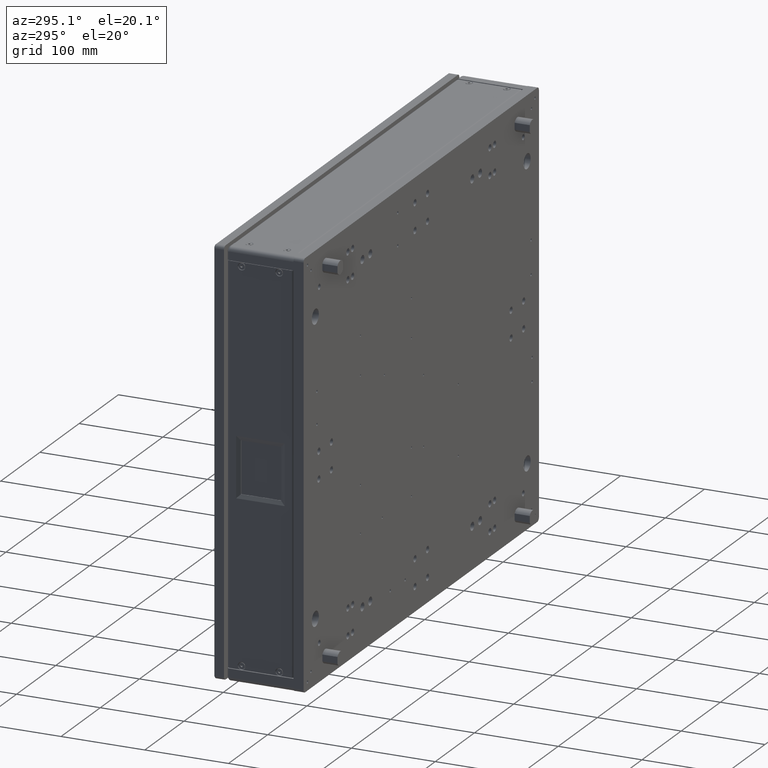
[diagram: clean part render]
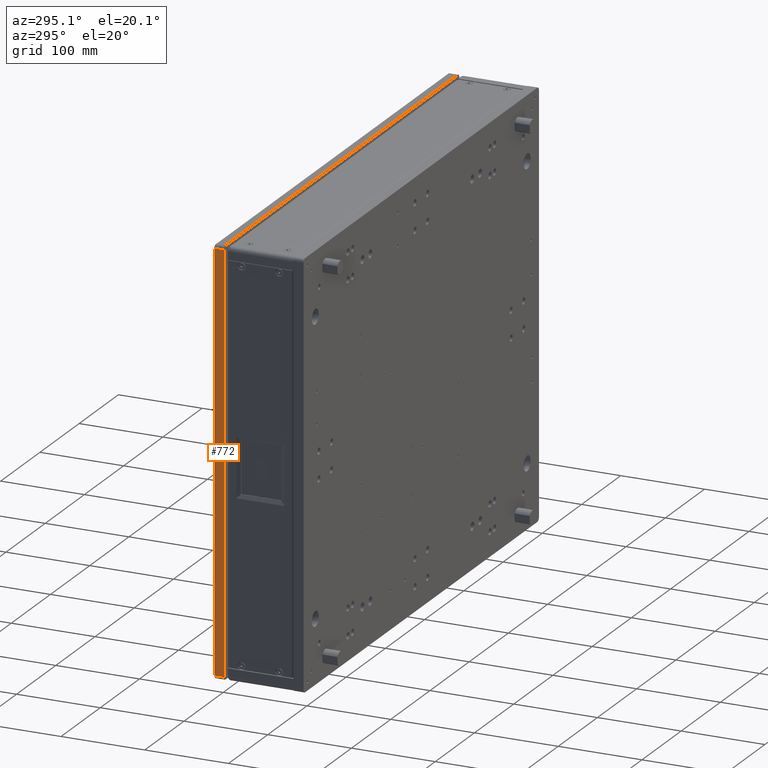
[diagram: same view with one face highlighted and labeled with its STEP entity id]
A machine part, auxiliary view. The second image highlights one B-rep face of the part: STEP entity #772.
In plain terms, the highlighted planar face has unit normal (-1, -0, -0).
Its self-contained STEP definition (entity closure, byte-faithful):
#486 = VERTEX_POINT ( 'NONE', #3419 ) ;
#772 = ADVANCED_FACE ( 'NONE', ( #36247 ), #29908, .T. ) ;
#975 = ORIENTED_EDGE ( 'NONE', *, *, #1399, .F. ) ;
#1072 = ORIENTED_EDGE ( 'NONE', *, *, #22641, .T. ) ;
#1399 = EDGE_CURVE ( 'NONE', #35122, #486, #21547, .T. ) ;
#2577 = DIRECTION ( 'NONE',  ( -1.066854937725736117E-16, -8.030019939456235204E-17, -1.000000000000000000 ) ) ;
#2781 = DIRECTION ( 'NONE',  ( -1.000000000000000000, -2.376672073132158167E-16, -4.336808689942023129E-18 ) ) ;
#3419 = CARTESIAN_POINT ( 'NONE',  ( -295.5487244020256981, 112.1371811005076040, 299.0000000000001705 ) ) ;
#4976 = CARTESIAN_POINT ( 'NONE',  ( -295.5487244020133062, 101.1371811005062966, 553.3565087996971670 ) ) ;
#5562 = CARTESIAN_POINT ( 'NONE',  ( -295.5487244020132493, 113.1371811005063108, 795.0000000000001137 ) ) ;
#7076 = ORIENTED_EDGE ( 'NONE', *, *, #10428, .F. ) ;
#8955 = CARTESIAN_POINT ( 'NONE',  ( -295.5487244020132493, 112.1371811005064245, 791.0000000000001137 ) ) ;
#9359 = CARTESIAN_POINT ( 'NONE',  ( -295.5487244020132493, 112.1371811005064245, 795.0000000000001137 ) ) ;
#10428 = EDGE_CURVE ( 'NONE', #16649, #35122, #23220, .T. ) ;
#12734 = VECTOR ( 'NONE', #36972, 1000.000000000000000 ) ;
#12858 = CARTESIAN_POINT ( 'NONE',  ( -295.5487244020132493, 113.1371811005063108, 791.0000000000001137 ) ) ;
#14878 = DIRECTION ( 'NONE',  ( 4.336808689942042388E-18, -8.030019939456232739E-17, -1.000000000000000000 ) ) ;
#15554 = CARTESIAN_POINT ( 'NONE',  ( -295.5487244020132493, 101.1371811005063250, 791.0000000000001137 ) ) ;
#16649 = VERTEX_POINT ( 'NONE', #15554 ) ;
#18995 = DIRECTION ( 'NONE',  ( -2.376672073132158167E-16, 1.000000000000000000, -8.030019939456232739E-17 ) ) ;
#21547 = LINE ( 'NONE', #33222, #12734 ) ;
#22641 = EDGE_CURVE ( 'NONE', #22671, #486, #31237, .T. ) ;
#22671 = VERTEX_POINT ( 'NONE', #8955 ) ;
#23220 = LINE ( 'NONE', #4976, #24388 ) ;
#24388 = VECTOR ( 'NONE', #2577, 1000.000000000000000 ) ;
#26811 = ORIENTED_EDGE ( 'NONE', *, *, #34308, .T. ) ;
#28090 = LINE ( 'NONE', #12858, #30232 ) ;
#28467 = AXIS2_PLACEMENT_3D ( 'NONE', #5562, #2781, #14878 ) ;
#29908 = PLANE ( 'NONE',  #28467 ) ;
#30085 = CARTESIAN_POINT ( 'NONE',  ( -295.5487244020133062, 101.1371811005062824, 299.0000000000001705 ) ) ;
#30087 = VECTOR ( 'NONE', #33488, 1000.000000000000000 ) ;
#30232 = VECTOR ( 'NONE', #18995, 1000.000000000000000 ) ;
#31237 = LINE ( 'NONE', #9359, #30087 ) ;
#33222 = CARTESIAN_POINT ( 'NONE',  ( -295.5487244020132493, 113.1371811005062682, 299.0000000000001705 ) ) ;
#33488 = DIRECTION ( 'NONE',  ( 4.336808689942042388E-18, -8.030019939456232739E-17, -1.000000000000000000 ) ) ;
#34308 = EDGE_CURVE ( 'NONE', #16649, #22671, #28090, .T. ) ;
#34832 = EDGE_LOOP ( 'NONE', ( #975, #7076, #26811, #1072 ) ) ;
#35122 = VERTEX_POINT ( 'NONE', #30085 ) ;
#36247 = FACE_OUTER_BOUND ( 'NONE', #34832, .T. ) ;
#36972 = DIRECTION ( 'NONE',  ( -2.376672073132158167E-16, 1.000000000000000000, -8.030019939456232739E-17 ) ) ;